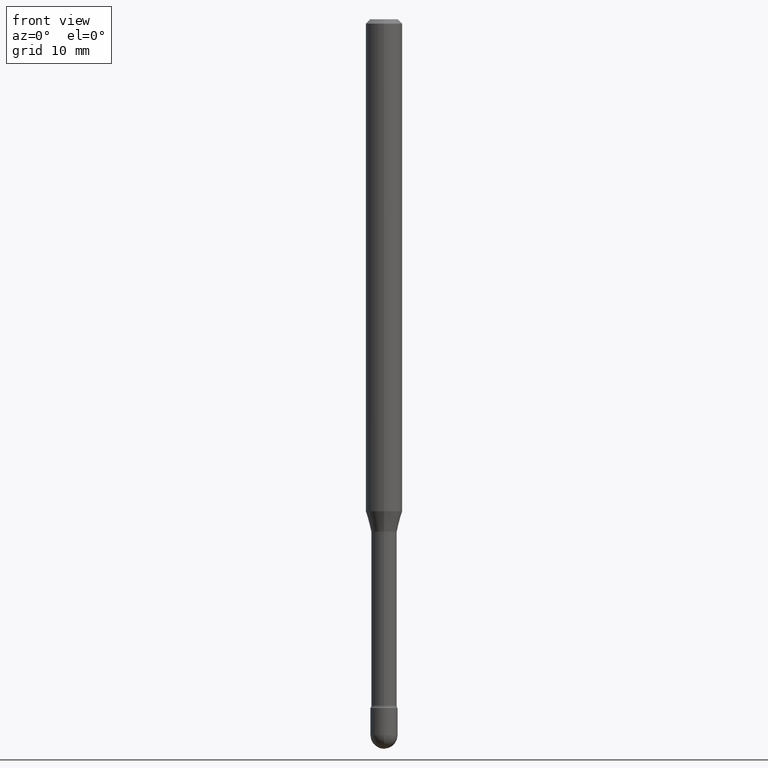
[diagram: clean part render]
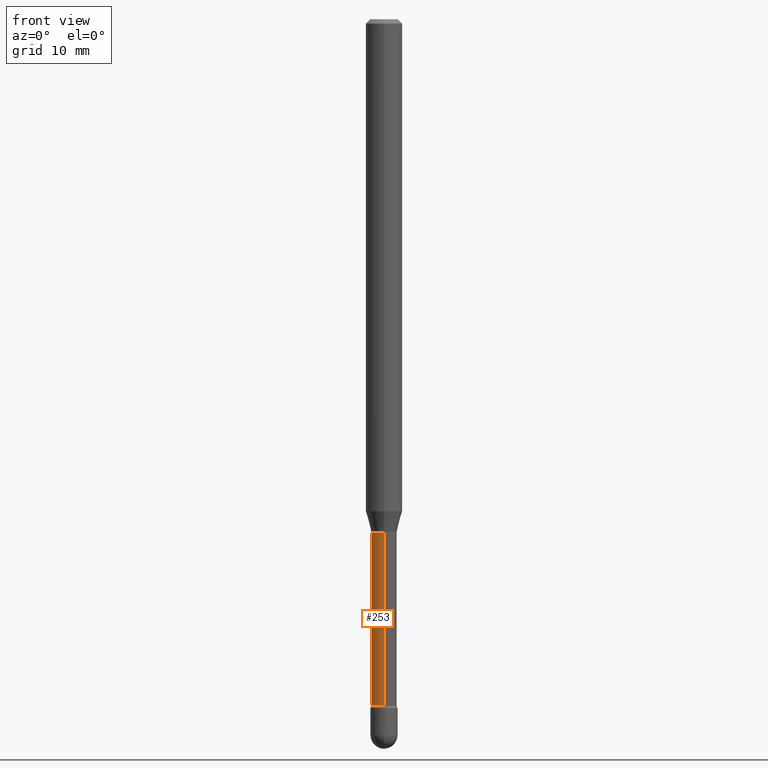
[diagram: same view with one face highlighted and labeled with its STEP entity id]
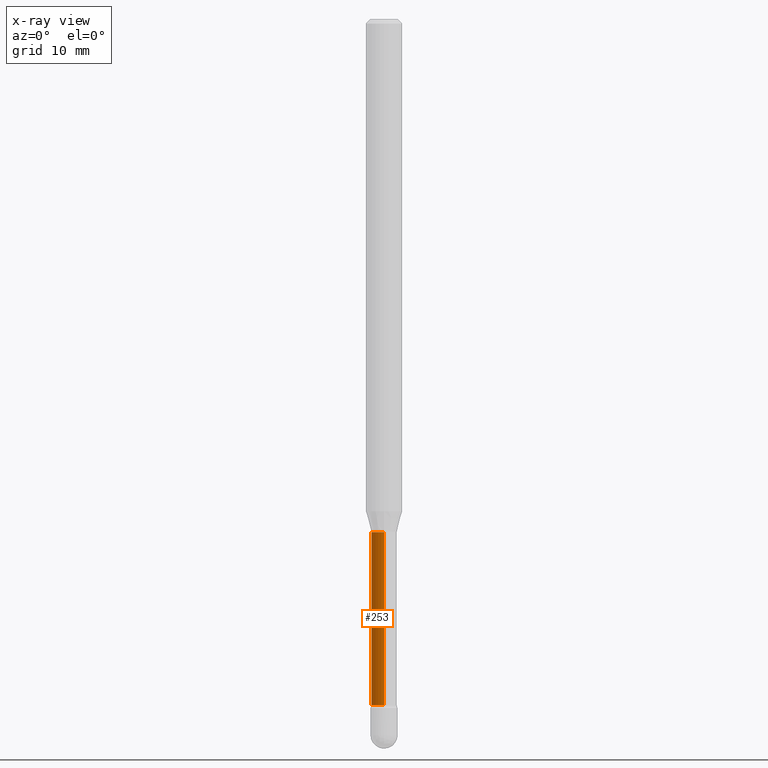
[diagram: x-ray of the same camera — body ghosted, the highlighted face saturated]
A machine part, front view. The second image highlights one B-rep face of the part: STEP entity #253.
The next image is the same camera in x-ray: the body ghosted, the highlighted face saturated — about 0% of this face is hidden behind the body in this view.
In plain terms, the highlighted cylindrical surface (edge-blend (fillet) strip) has radius 1.11 mm, axis along (-0, 0, 1).
Its self-contained STEP definition (entity closure, byte-faithful):
#6 = FACE_OUTER_BOUND ( 'NONE', #190, .T. ) ;
#20 = EDGE_CURVE ( 'NONE', #314, #462, #394, .T. ) ;
#38 = DIRECTION ( 'NONE',  ( -2.445464837296052418E-29, 3.491487022518209281E-15, 1.000000000000000000 ) ) ;
#40 = DIRECTION ( 'NONE',  ( -2.445464837296052418E-29, 3.491487022518209281E-15, 1.000000000000000000 ) ) ;
#76 = CYLINDRICAL_SURFACE ( 'NONE', #402, 0.04370000000000001661 ) ;
#121 = DIRECTION ( 'NONE',  ( -6.982962677686265133E-15, -1.000000000000000000, 3.491487022518207704E-15 ) ) ;
#123 = VERTEX_POINT ( 'NONE', #347 ) ;
#133 = EDGE_CURVE ( 'NONE', #462, #123, #179, .T. ) ;
#138 = LINE ( 'NONE', #308, #542 ) ;
#141 = ORIENTED_EDGE ( 'NONE', *, *, #157, .F. ) ;
#154 = CARTESIAN_POINT ( 'NONE',  ( 3.105071755272214368E-16, 0.04369999999999385487, -1.757974787463811417 ) ) ;
#157 = EDGE_CURVE ( 'NONE', #314, #325, #138, .T. ) ;
#179 = LINE ( 'NONE', #536, #241 ) ;
#190 = EDGE_LOOP ( 'NONE', ( #141, #354, #557, #252 ) ) ;
#232 = CARTESIAN_POINT ( 'NONE',  ( 3.204547738278629271E-16, 0.04369999999999182871, -2.351273030308291823 ) ) ;
#241 = VECTOR ( 'NONE', #315, 39.37007874015748143 ) ;
#252 = ORIENTED_EDGE ( 'NONE', *, *, #322, .F. ) ;
#253 = ADVANCED_FACE ( 'NONE', ( #6 ), #76, .T. ) ;
#276 = DIRECTION ( 'NONE',  ( -6.982962677686265922E-15, -1.000000000000000000, 6.251368406554371473E-15 ) ) ;
#301 = AXIS2_PLACEMENT_3D ( 'NONE', #455, #398, #276 ) ;
#308 = CARTESIAN_POINT ( 'NONE',  ( 3.105071755271638499E-16, 0.04370000000000001661, 3.254954160072002498E-16 ) ) ;
#314 = VERTEX_POINT ( 'NONE', #232 ) ;
#315 = DIRECTION ( 'NONE',  ( -2.445464837296052418E-29, 3.491487022518209281E-15, 1.000000000000000000 ) ) ;
#322 = EDGE_CURVE ( 'NONE', #325, #123, #440, .T. ) ;
#325 = VERTEX_POINT ( 'NONE', #154 ) ;
#333 = CARTESIAN_POINT ( 'NONE',  ( 4.299065527595750921E-29, -6.137946156344103196E-15, -1.757974787463811195 ) ) ;
#347 = CARTESIAN_POINT ( 'NONE',  ( -3.051554690148468256E-16, -0.04370000000000613671, -1.757974787463810751 ) ) ;
#354 = ORIENTED_EDGE ( 'NONE', *, *, #20, .T. ) ;
#360 = AXIS2_PLACEMENT_3D ( 'NONE', #333, #40, #515 ) ;
#394 = CIRCLE ( 'NONE', #301, 0.04370000000000004436 ) ;
#398 = DIRECTION ( 'NONE',  ( -2.445464837296052418E-29, 3.491487022518209281E-15, 1.000000000000000000 ) ) ;
#402 = AXIS2_PLACEMENT_3D ( 'NONE', #456, #38, #121 ) ;
#440 = CIRCLE ( 'NONE', #360, 0.04370000000000000273 ) ;
#455 = CARTESIAN_POINT ( 'NONE',  ( 5.749955518501461403E-29, -8.209439271718462949E-15, -2.351273030308291379 ) ) ;
#456 = CARTESIAN_POINT ( 'NONE',  ( -1.169113584055446105E-44, 1.669184350826100908E-30, 4.780733988912460139E-16 ) ) ;
#462 = VERTEX_POINT ( 'NONE', #520 ) ;
#481 = DIRECTION ( 'NONE',  ( -2.445464837296052418E-29, 3.491487022518209281E-15, 1.000000000000000000 ) ) ;
#515 = DIRECTION ( 'NONE',  ( -6.982962677686266711E-15, -1.000000000000000000, 6.251368406554377784E-15 ) ) ;
#520 = CARTESIAN_POINT ( 'NONE',  ( -3.051554690148325768E-16, -0.04370000000000825308, -2.351273030308290934 ) ) ;
#536 = CARTESIAN_POINT ( 'NONE',  ( -3.051554690148899172E-16, -0.04370000000000001661, 6.306513817752917780E-16 ) ) ;
#542 = VECTOR ( 'NONE', #481, 39.37007874015748143 ) ;
#557 = ORIENTED_EDGE ( 'NONE', *, *, #133, .T. ) ;